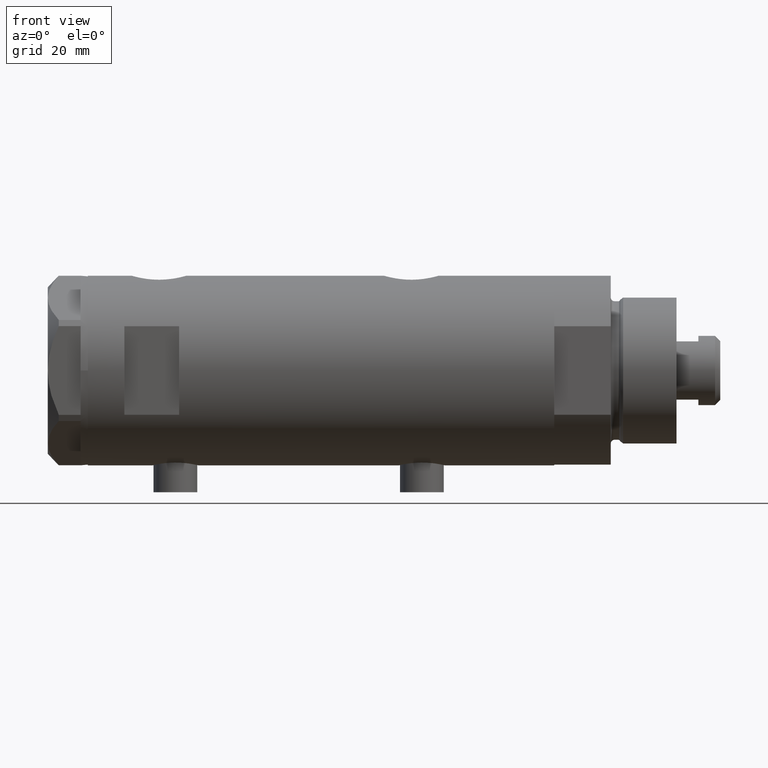
[diagram: clean part render]
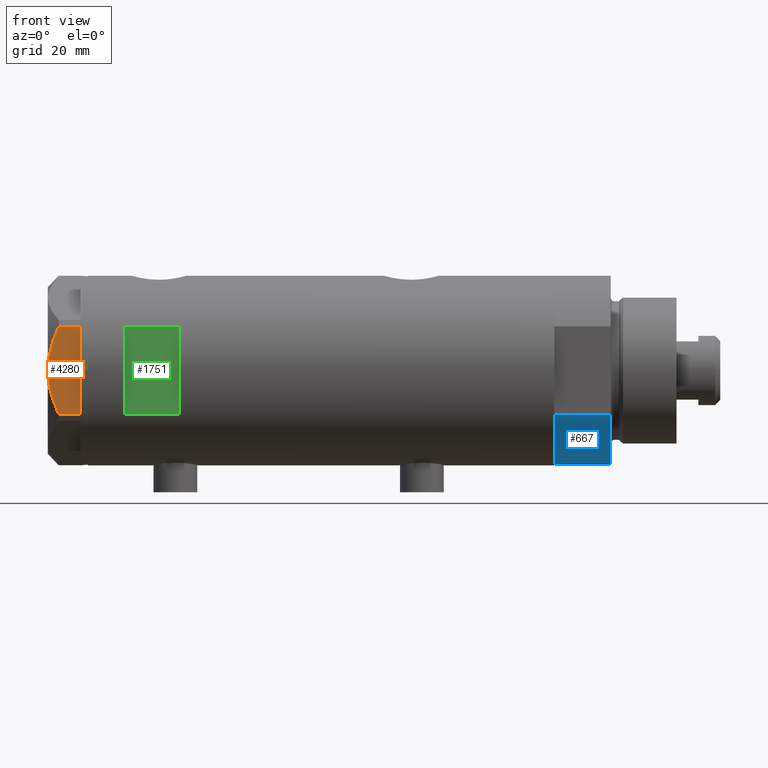
[diagram: same view with three faces highlighted in distinct colors, each labeled with its STEP entity id]
A machine part, front view with three faces highlighted in distinct colors.
Their STEP definitions:

[orange] entity #4280 — the highlighted planar face has unit normal (-0, 1, -0).
#162 = VERTEX_POINT ( 'NONE', #3367 ) ;
#192 = CARTESIAN_POINT ( 'NONE',  ( -22.99999999999999645, 13.27905619136132032, 0.000000000000000000 ) ) ;
#223 = LINE ( 'NONE', #192, #745 ) ;
#245 = EDGE_LOOP ( 'NONE', ( #3018, #3208, #2296, #1832, #735, #1675, #946 ) ) ;
#247 = CARTESIAN_POINT ( 'NONE',  ( -23.00000000000004619, -8.112498833180673323E-14, 9.000000000000000000 ) ) ;
#289 = VERTEX_POINT ( 'NONE', #979 ) ;
#323 = EDGE_CURVE ( 'NONE', #162, #1266, #223, .T. ) ;
#389 = DIRECTION ( 'NONE',  ( 0.000000000000000000, 0.000000000000000000, -1.000000000000000000 ) ) ;
#497 = EDGE_CURVE ( 'NONE', #3285, #531, #2694, .T. ) ;
#531 = VERTEX_POINT ( 'NONE', #2984 ) ;
#652 = CARTESIAN_POINT ( 'NONE',  ( -23.00000000000004619, -8.112498833180673323E-14, 9.000000000000000000 ) ) ;
#678 = DIRECTION ( 'NONE',  ( 3.527173405730720141E-15, -1.000000000000000000, 0.000000000000000000 ) ) ;
#735 = ORIENTED_EDGE ( 'NONE', *, *, #323, .T. ) ;
#745 = VECTOR ( 'NONE', #1646, 1000.000000000000000 ) ;
#816 = VERTEX_POINT ( 'NONE', #2809 ) ;
#944 = FACE_OUTER_BOUND ( 'NONE', #245, .T. ) ;
#946 = ORIENTED_EDGE ( 'NONE', *, *, #497, .F. ) ;
#961 = DIRECTION ( 'NONE',  ( 0.000000000000000000, 0.000000000000000000, 1.000000000000000000 ) ) ;
#979 = CARTESIAN_POINT ( 'NONE',  ( -22.99999999999999289, 12.12435565298215856, 0.000000000000000000 ) ) ;
#981 = CARTESIAN_POINT ( 'NONE',  ( -22.99999999999996803, 4.194757081058972936, 8.703000351525203016 ) ) ;
#987 = CARTESIAN_POINT ( 'NONE',  ( -22.99999999999999645, 13.27905619136132032, 9.000000000000000000 ) ) ;
#1078 = VECTOR ( 'NONE', #3762, 1000.000000000000000 ) ;
#1266 = VERTEX_POINT ( 'NONE', #4632 ) ;
#1372 = CARTESIAN_POINT ( 'NONE',  ( -22.99999999999991829, -8.252113629125268801, 7.581642062680223226 ) ) ;
#1553 = AXIS2_PLACEMENT_3D ( 'NONE', #987, #2773, #3963 ) ;
#1646 = DIRECTION ( 'NONE',  ( 3.527173405730720141E-15, -1.000000000000000000, 0.000000000000000000 ) ) ;
#1675 = ORIENTED_EDGE ( 'NONE', *, *, #3305, .T. ) ;
#1690 = CARTESIAN_POINT ( 'NONE',  ( -22.99999999999995381, 2.122900714018063795, 9.000000000000092371 ) ) ;
#1695 = LINE ( 'NONE', #2819, #2012 ) ;
#1818 = EDGE_CURVE ( 'NONE', #289, #162, #1695, .T. ) ;
#1832 = ORIENTED_EDGE ( 'NONE', *, *, #1818, .T. ) ;
#2012 = VECTOR ( 'NONE', #678, 1000.000000000000000 ) ;
#2106 = CARTESIAN_POINT ( 'NONE',  ( -23.00000000000004619, -8.112498833180673323E-14, 9.000000000000000000 ) ) ;
#2131 = CARTESIAN_POINT ( 'NONE',  ( -22.99999999999990763, -11.68282849742335827, 6.206372352695425754 ) ) ;
#2150 = CARTESIAN_POINT ( 'NONE',  ( -22.99999999999995026, -1.063773509315737442, 8.981438083606830602 ) ) ;
#2178 = CARTESIAN_POINT ( 'NONE',  ( -22.99999999999998934, 11.20825071633916359, 6.428173306378450746 ) ) ;
#2230 = CARTESIAN_POINT ( 'NONE',  ( -22.99999999999999645, 13.27905619136132032, 0.000000000000000000 ) ) ;
#2296 = ORIENTED_EDGE ( 'NONE', *, *, #2451, .T. ) ;
#2440 = PLANE ( 'NONE',  #1553 ) ;
#2451 = EDGE_CURVE ( 'NONE', #816, #289, #3436, .T. ) ;
#2504 = CARTESIAN_POINT ( 'NONE',  ( -22.99999999999991118, -11.20155944044816287, 6.421102682632757741 ) ) ;
#2550 = LINE ( 'NONE', #3569, #3200 ) ;
#2694 = B_SPLINE_CURVE_WITH_KNOTS ( 'NONE', 3,
 ( #652, #3983, #2150, #4745, #4815, #4452, #3353, #3640, #1372, #3251, #2862, #2504, #2131, #4397 ),
 .UNSPECIFIED., .F., .F.,
 ( 4, 2, 2, 2, 2, 2, 4 ),
 ( 0.04777139595992690307, 0.04934380568070229761, 0.05091621540147769215, 0.05406103484302848122, 0.05720585428457927030, 0.05877826400535466483, 0.06035067372613005937 ),
 .UNSPECIFIED. ) ;
#2773 = DIRECTION ( 'NONE',  ( 1.000000000000000000, 3.527173405730720141E-15, -0.000000000000000000 ) ) ;
#2809 = CARTESIAN_POINT ( 'NONE',  ( -22.99999999999999289, 12.15905619136133176, 0.000000000000000000 ) ) ;
#2819 = CARTESIAN_POINT ( 'NONE',  ( -22.99999999999999645, 13.27905619136132032, 0.000000000000000000 ) ) ;
#2862 = CARTESIAN_POINT ( 'NONE',  ( -22.99999999999991118, -10.22738952213794761, 6.832470313674783746 ) ) ;
#2895 = CARTESIAN_POINT ( 'NONE',  ( -22.99999999999997158, 6.734330413511419700, 8.039389741252668031 ) ) ;
#2978 = B_SPLINE_CURVE_WITH_KNOTS ( 'NONE', 3,
 ( #4698, #2178, #3252, #3621, #4747, #3666, #2895, #981, #1690, #247 ),
 .UNSPECIFIED., .F., .F.,
 ( 4, 2, 2, 2, 4 ),
 ( 0.03516523594057416324, 0.03831677594541234300, 0.03989254594783143981, 0.04146831595025052969, 0.04777139595992690307 ),
 .UNSPECIFIED. ) ;
#2984 = CARTESIAN_POINT ( 'NONE',  ( -22.99999999999990763, -12.15905619136147564, 5.983800287807627072 ) ) ;
#3018 = ORIENTED_EDGE ( 'NONE', *, *, #3310, .F. ) ;
#3200 = VECTOR ( 'NONE', #961, 1000.000000000000000 ) ;
#3208 = ORIENTED_EDGE ( 'NONE', *, *, #4866, .T. ) ;
#3251 = CARTESIAN_POINT ( 'NONE',  ( -22.99999999999991829, -9.734726261263297431, 7.028924700095662281 ) ) ;
#3252 = CARTESIAN_POINT ( 'NONE',  ( -22.99999999999998579, 10.23890159976122050, 6.840812428290914404 ) ) ;
#3285 = VERTEX_POINT ( 'NONE', #2106 ) ;
#3305 = EDGE_CURVE ( 'NONE', #1266, #531, #2550, .T. ) ;
#3310 = EDGE_CURVE ( 'NONE', #3448, #3285, #2978, .T. ) ;
#3353 = CARTESIAN_POINT ( 'NONE',  ( -22.99999999999992895, -5.228918809624124364, 8.433337033849854336 ) ) ;
#3367 = CARTESIAN_POINT ( 'NONE',  ( -22.99999999999990763, -12.12435565298232021, 0.000000000000000000 ) ) ;
#3436 = LINE ( 'NONE', #2230, #1078 ) ;
#3448 = VERTEX_POINT ( 'NONE', #4846 ) ;
#3569 = CARTESIAN_POINT ( 'NONE',  ( -22.99999999999990763, -12.15905619136147386, 9.000000000000000000 ) ) ;
#3621 = CARTESIAN_POINT ( 'NONE',  ( -22.99999999999997513, 8.748091966971378142, 7.396818978284571244 ) ) ;
#3640 = CARTESIAN_POINT ( 'NONE',  ( -22.99999999999992184, -7.253003311474388148, 7.903276810347638737 ) ) ;
#3666 = CARTESIAN_POINT ( 'NONE',  ( -22.99999999999996803, 7.239756182922199024, 7.892186063422847120 ) ) ;
#3753 = CARTESIAN_POINT ( 'NONE',  ( -22.99999999999999289, 12.15905619136133176, 9.000000000000000000 ) ) ;
#3762 = DIRECTION ( 'NONE',  ( 3.527173405730720141E-15, -1.000000000000000000, 0.000000000000000000 ) ) ;
#3963 = DIRECTION ( 'NONE',  ( -3.527173405730720141E-15, 1.000000000000000000, 0.000000000000000000 ) ) ;
#3983 = CARTESIAN_POINT ( 'NONE',  ( -22.99999999999995737, -0.5295934231897764244, 9.000000000000092371 ) ) ;
#4165 = LINE ( 'NONE', #3753, #4366 ) ;
#4280 = ADVANCED_FACE ( 'NONE', ( #944 ), #2440, .F. ) ;
#4366 = VECTOR ( 'NONE', #389, 1000.000000000000000 ) ;
#4397 = CARTESIAN_POINT ( 'NONE',  ( -22.99999999999990763, -12.15905619136147564, 5.983800287807627072 ) ) ;
#4452 = CARTESIAN_POINT ( 'NONE',  ( -22.99999999999993250, -4.203926054641964782, 8.641681223122507305 ) ) ;
#4632 = CARTESIAN_POINT ( 'NONE',  ( -22.99999999999990763, -12.15905619136147386, 0.000000000000000000 ) ) ;
#4698 = CARTESIAN_POINT ( 'NONE',  ( -22.99999999999999289, 12.15905619136133176, 5.983800287807616414 ) ) ;
#4745 = CARTESIAN_POINT ( 'NONE',  ( -22.99999999999993960, -2.119709279061923191, 8.908535212173198659 ) ) ;
#4747 = CARTESIAN_POINT ( 'NONE',  ( -22.99999999999998224, 8.246028007352361300, 7.571131808646907935 ) ) ;
#4815 = CARTESIAN_POINT ( 'NONE',  ( -22.99999999999993960, -2.643615312305158671, 8.854304560636265364 ) ) ;
#4846 = CARTESIAN_POINT ( 'NONE',  ( -22.99999999999999289, 12.15905619136133176, 5.983800287807616414 ) ) ;
#4866 = EDGE_CURVE ( 'NONE', #3448, #816, #4165, .T. ) ;

[blue] entity #667 — the highlighted cylindrical surface (partial cylindrical patch) has radius 26 mm, axis along (-1, -0, 0).
#14 = EDGE_CURVE ( 'NONE', #3062, #2993, #2231, .T. ) ;
#142 = ORIENTED_EDGE ( 'NONE', *, *, #724, .F. ) ;
#151 = ORIENTED_EDGE ( 'NONE', *, *, #414, .T. ) ;
#175 = ORIENTED_EDGE ( 'NONE', *, *, #14, .F. ) ;
#214 = CARTESIAN_POINT ( 'NONE',  ( 12.12435565298214080, 23.00000000000000355, 0.000000000000000000 ) ) ;
#414 = EDGE_CURVE ( 'NONE', #2284, #2993, #4423, .T. ) ;
#501 = DIRECTION ( 'NONE',  ( 1.000000000000000000, 0.000000000000000000, 0.000000000000000000 ) ) ;
#516 = CARTESIAN_POINT ( 'NONE',  ( 12.12435565298215323, -22.99999999999999645, 0.000000000000000000 ) ) ;
#667 = ADVANCED_FACE ( 'NONE', ( #4844 ), #1494, .T. ) ;
#724 = EDGE_CURVE ( 'NONE', #3476, #3062, #1711, .T. ) ;
#1494 = CYLINDRICAL_SURFACE ( 'NONE', #3870, 26.00000000000000355 ) ;
#1495 = CARTESIAN_POINT ( 'NONE',  ( 12.12435565298215323, -22.99999999999999645, 0.000000000000000000 ) ) ;
#1571 = CARTESIAN_POINT ( 'NONE',  ( 12.12435565298214790, 23.00000000000000355, 15.50000000000000000 ) ) ;
#1633 = CIRCLE ( 'NONE', #2727, 26.00000000000000355 ) ;
#1711 = LINE ( 'NONE', #516, #4572 ) ;
#1767 = CARTESIAN_POINT ( 'NONE',  ( 12.12435565298215323, 23.00000000000000355, 0.000000000000000000 ) ) ;
#1891 = DIRECTION ( 'NONE',  ( -0.000000000000000000, -0.000000000000000000, -1.000000000000000000 ) ) ;
#2016 = CARTESIAN_POINT ( 'NONE',  ( 0.000000000000000000, 0.000000000000000000, 0.000000000000000000 ) ) ;
#2090 = CARTESIAN_POINT ( 'NONE',  ( 0.000000000000000000, 0.000000000000000000, 15.50000000000000000 ) ) ;
#2155 = VECTOR ( 'NONE', #3324, 1000.000000000000000 ) ;
#2231 = CIRCLE ( 'NONE', #4099, 26.00000000000000355 ) ;
#2284 = VERTEX_POINT ( 'NONE', #214 ) ;
#2619 = CARTESIAN_POINT ( 'NONE',  ( 0.000000000000000000, 0.000000000000000000, 15.50000000000000000 ) ) ;
#2727 = AXIS2_PLACEMENT_3D ( 'NONE', #2016, #3141, #501 ) ;
#2993 = VERTEX_POINT ( 'NONE', #1571 ) ;
#3062 = VERTEX_POINT ( 'NONE', #3451 ) ;
#3141 = DIRECTION ( 'NONE',  ( 0.000000000000000000, 0.000000000000000000, 1.000000000000000000 ) ) ;
#3150 = DIRECTION ( 'NONE',  ( -0.000000000000000000, -0.000000000000000000, 1.000000000000000000 ) ) ;
#3213 = DIRECTION ( 'NONE',  ( 1.000000000000000000, 0.000000000000000000, 0.000000000000000000 ) ) ;
#3324 = DIRECTION ( 'NONE',  ( -0.000000000000000000, -0.000000000000000000, 1.000000000000000000 ) ) ;
#3379 = DIRECTION ( 'NONE',  ( -1.000000000000000000, 0.000000000000000000, 0.000000000000000000 ) ) ;
#3451 = CARTESIAN_POINT ( 'NONE',  ( 12.12435565298215323, -22.99999999999999645, 15.50000000000000000 ) ) ;
#3476 = VERTEX_POINT ( 'NONE', #1495 ) ;
#3594 = ORIENTED_EDGE ( 'NONE', *, *, #4192, .T. ) ;
#3870 = AXIS2_PLACEMENT_3D ( 'NONE', #2619, #1891, #3379 ) ;
#4099 = AXIS2_PLACEMENT_3D ( 'NONE', #2090, #4729, #3213 ) ;
#4192 = EDGE_CURVE ( 'NONE', #3476, #2284, #1633, .T. ) ;
#4304 = EDGE_LOOP ( 'NONE', ( #175, #142, #3594, #151 ) ) ;
#4423 = LINE ( 'NONE', #1767, #2155 ) ;
#4572 = VECTOR ( 'NONE', #3150, 1000.000000000000000 ) ;
#4729 = DIRECTION ( 'NONE',  ( 0.000000000000000000, 0.000000000000000000, 1.000000000000000000 ) ) ;
#4844 = FACE_OUTER_BOUND ( 'NONE', #4304, .T. ) ;

[green] entity #1751 — the highlighted planar face has unit normal (-0, 1, 0).
#74 = VERTEX_POINT ( 'NONE', #660 ) ;
#603 = ORIENTED_EDGE ( 'NONE', *, *, #2383, .T. ) ;
#660 = CARTESIAN_POINT ( 'NONE',  ( -12.12435565298214080, -23.00000000000000355, 38.94999999999999574 ) ) ;
#684 = VECTOR ( 'NONE', #1333, 1000.000000000000000 ) ;
#787 = EDGE_CURVE ( 'NONE', #74, #4327, #3563, .T. ) ;
#1056 = DIRECTION ( 'NONE',  ( 0.000000000000000000, -0.000000000000000000, 1.000000000000000000 ) ) ;
#1058 = CARTESIAN_POINT ( 'NONE',  ( -12.12435565298214080, -23.00000000000000355, -63.95000000000000995 ) ) ;
#1333 = DIRECTION ( 'NONE',  ( 1.000000000000000000, -0.000000000000000000, -0.000000000000000000 ) ) ;
#1376 = CARTESIAN_POINT ( 'NONE',  ( -26.00000000000000355, -23.00000000000000355, 53.94999999999999574 ) ) ;
#1407 = PLANE ( 'NONE',  #4511 ) ;
#1441 = ORIENTED_EDGE ( 'NONE', *, *, #4410, .T. ) ;
#1751 = ADVANCED_FACE ( 'NONE', ( #4752 ), #1407, .F. ) ;
#2055 = DIRECTION ( 'NONE',  ( 1.000000000000000000, -0.000000000000000000, -0.000000000000000000 ) ) ;
#2081 = VECTOR ( 'NONE', #2055, 1000.000000000000000 ) ;
#2250 = CARTESIAN_POINT ( 'NONE',  ( 12.12435565298214080, -23.00000000000000355, 38.94999999999999574 ) ) ;
#2383 = EDGE_CURVE ( 'NONE', #4327, #4713, #2661, .T. ) ;
#2496 = VECTOR ( 'NONE', #4102, 1000.000000000000000 ) ;
#2547 = CARTESIAN_POINT ( 'NONE',  ( -12.12435565298214080, -23.00000000000000355, 53.94999999999999574 ) ) ;
#2556 = EDGE_CURVE ( 'NONE', #3597, #4713, #4627, .T. ) ;
#2661 = LINE ( 'NONE', #3012, #4671 ) ;
#3012 = CARTESIAN_POINT ( 'NONE',  ( 12.12435565298214080, -23.00000000000000355, -63.95000000000000995 ) ) ;
#3071 = EDGE_LOOP ( 'NONE', ( #1441, #3982, #603, #4340 ) ) ;
#3171 = CARTESIAN_POINT ( 'NONE',  ( -26.00000000000000355, -23.00000000000000355, 38.94999999999999574 ) ) ;
#3385 = LINE ( 'NONE', #1058, #2496 ) ;
#3563 = LINE ( 'NONE', #3171, #2081 ) ;
#3597 = VERTEX_POINT ( 'NONE', #2547 ) ;
#3982 = ORIENTED_EDGE ( 'NONE', *, *, #787, .T. ) ;
#3987 = DIRECTION ( 'NONE',  ( 0.000000000000000000, 1.000000000000000000, 0.000000000000000000 ) ) ;
#4102 = DIRECTION ( 'NONE',  ( -0.000000000000000000, -0.000000000000000000, -1.000000000000000000 ) ) ;
#4109 = DIRECTION ( 'NONE',  ( 0.000000000000000000, 0.000000000000000000, 1.000000000000000000 ) ) ;
#4203 = CARTESIAN_POINT ( 'NONE',  ( -26.00000000000000355, -23.00000000000000355, 53.94999999999999574 ) ) ;
#4327 = VERTEX_POINT ( 'NONE', #2250 ) ;
#4340 = ORIENTED_EDGE ( 'NONE', *, *, #2556, .F. ) ;
#4353 = CARTESIAN_POINT ( 'NONE',  ( 12.12435565298214080, -23.00000000000000355, 53.94999999999999574 ) ) ;
#4410 = EDGE_CURVE ( 'NONE', #3597, #74, #3385, .T. ) ;
#4511 = AXIS2_PLACEMENT_3D ( 'NONE', #1376, #3987, #1056 ) ;
#4627 = LINE ( 'NONE', #4203, #684 ) ;
#4671 = VECTOR ( 'NONE', #4109, 1000.000000000000000 ) ;
#4713 = VERTEX_POINT ( 'NONE', #4353 ) ;
#4752 = FACE_OUTER_BOUND ( 'NONE', #3071, .T. ) ;